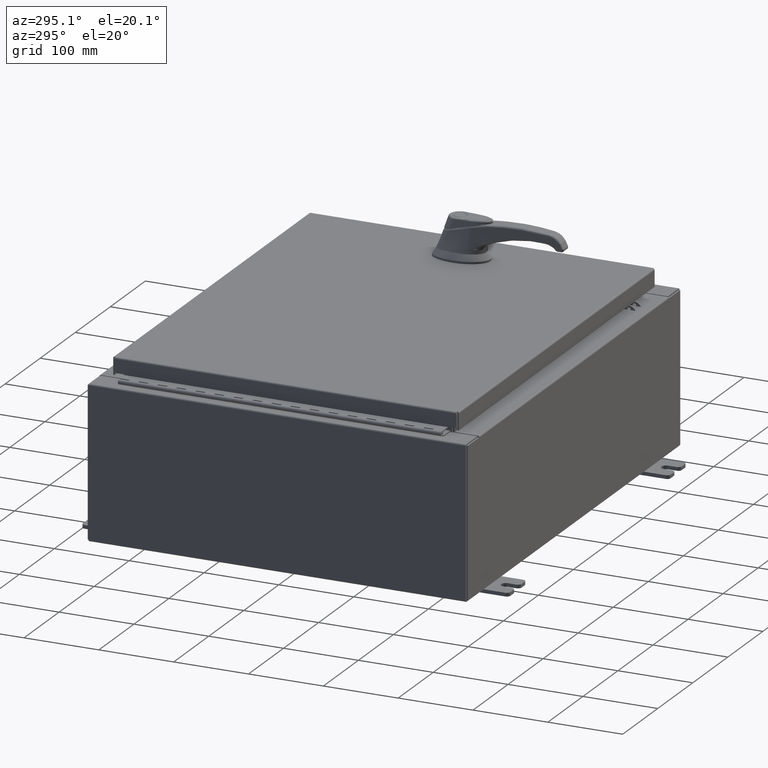
[diagram: clean part render]
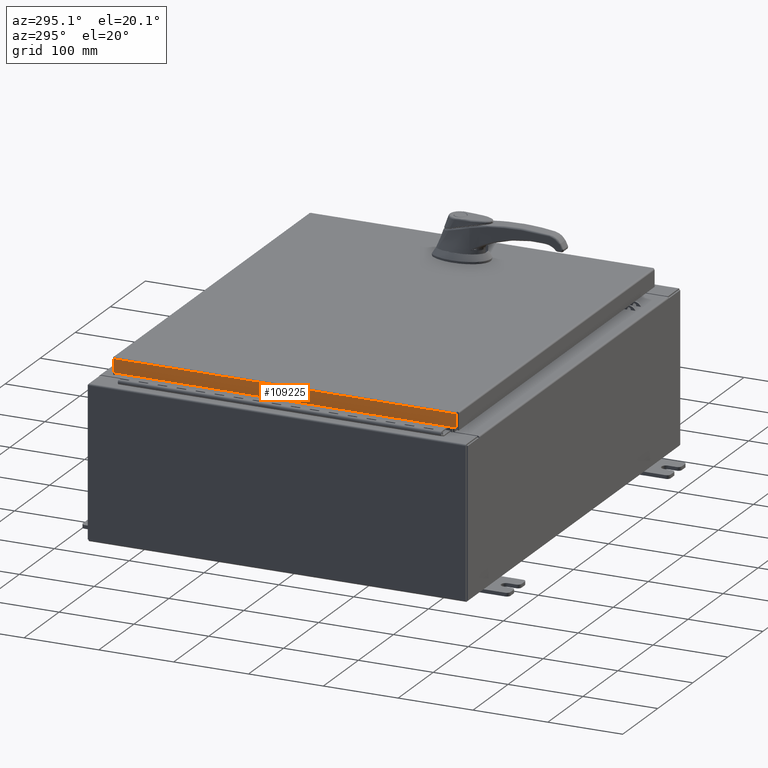
[diagram: same view with one face highlighted and labeled with its STEP entity id]
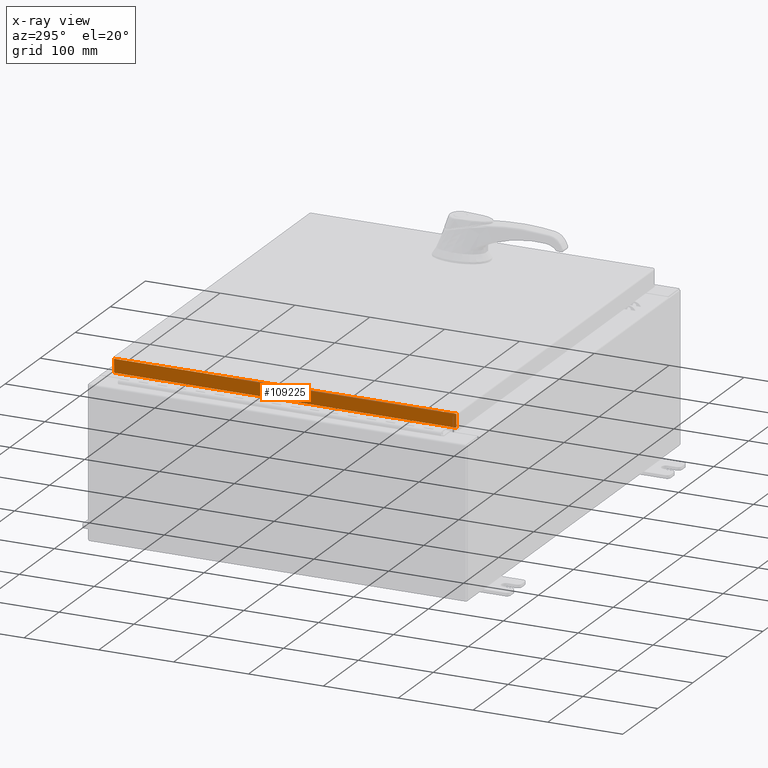
[diagram: x-ray of the same camera — body ghosted, the highlighted face saturated]
A machine part, auxiliary view. The second image highlights one B-rep face of the part: STEP entity #109225.
The next image is the same camera in x-ray: the body ghosted, the highlighted face saturated — about 0% of this face is hidden behind the body in this view.
In plain terms, the highlighted planar face has unit normal (1, 0, -0).
Its self-contained STEP definition (entity closure, byte-faithful):
#2311 = ORIENTED_EDGE ( 'NONE', *, *, #30311, .F. ) ;
#4566 = LINE ( 'NONE', #94943, #47178 ) ;
#7971 = CARTESIAN_POINT ( 'NONE',  ( -11.07799999999999900, -9.005157864376267100, -0.07469999999999976700 ) ) ;
#11057 = VECTOR ( 'NONE', #18598, 39.37007874015748100 ) ;
#13395 = AXIS2_PLACEMENT_3D ( 'NONE', #29704, #89373, #38254 ) ;
#14868 = VERTEX_POINT ( 'NONE', #26810 ) ;
#18598 = DIRECTION ( 'NONE',  ( 3.645815397208356400E-031, -1.000000000000000000, -1.074717912135910100E-045 ) ) ;
#21168 = VERTEX_POINT ( 'NONE', #103948 ) ;
#26810 = CARTESIAN_POINT ( 'NONE',  ( -11.07800000000000300, -9.005157864376261800, -0.7949999999999996000 ) ) ;
#27901 = VECTOR ( 'NONE', #70931, 39.37007874015748100 ) ;
#28598 = LINE ( 'NONE', #7971, #53943 ) ;
#29704 = CARTESIAN_POINT ( 'NONE',  ( -11.07799999999999900, -4.038834297027417500E-030, 3.387282206785410600E-014 ) ) ;
#30311 = EDGE_CURVE ( 'NONE', #64780, #21168, #59066, .T. ) ;
#31517 = FACE_OUTER_BOUND ( 'NONE', #105350, .T. ) ;
#32432 = CARTESIAN_POINT ( 'NONE',  ( -11.07799999999999900, -9.093999999999999400, -0.08770000000000004200 ) ) ;
#33743 = ORIENTED_EDGE ( 'NONE', *, *, #34404, .F. ) ;
#34404 = EDGE_CURVE ( 'NONE', #14868, #48802, #50553, .T. ) ;
#38254 = DIRECTION ( 'NONE',  ( -3.034122441942816500E-015, 0.0000000000000000000, -1.000000000000000000 ) ) ;
#47178 = VECTOR ( 'NONE', #103612, 39.37007874015748100 ) ;
#48802 = VERTEX_POINT ( 'NONE', #52478 ) ;
#50553 = LINE ( 'NONE', #105015, #27901 ) ;
#51105 = CARTESIAN_POINT ( 'NONE',  ( -11.07799999999999900, 9.005157864376270600, -0.08770000000000004200 ) ) ;
#52478 = CARTESIAN_POINT ( 'NONE',  ( -11.07800000000000300, 9.005157864376274200, -0.7949999999999974900 ) ) ;
#53943 = VECTOR ( 'NONE', #101640, 39.37007874015748100 ) ;
#59066 = LINE ( 'NONE', #32432, #11057 ) ;
#64780 = VERTEX_POINT ( 'NONE', #51105 ) ;
#64921 = ORIENTED_EDGE ( 'NONE', *, *, #93042, .F. ) ;
#70931 = DIRECTION ( 'NONE',  ( 4.379057701015054300E-047, 1.000000000000000000, 1.201604571657912400E-016 ) ) ;
#71865 = PLANE ( 'NONE',  #13395 ) ;
#89373 = DIRECTION ( 'NONE',  ( 1.000000000000000000, 3.645815397208356400E-031, -3.034122441942816500E-015 ) ) ;
#93042 = EDGE_CURVE ( 'NONE', #21168, #14868, #28598, .T. ) ;
#94907 = EDGE_CURVE ( 'NONE', #64780, #48802, #4566, .T. ) ;
#94943 = CARTESIAN_POINT ( 'NONE',  ( -11.07799999999999900, 9.005157864376268900, 9.675550334146656300E-014 ) ) ;
#101640 = DIRECTION ( 'NONE',  ( -3.034122441942816500E-015, 6.982962677686267500E-015, -1.000000000000000000 ) ) ;
#103612 = DIRECTION ( 'NONE',  ( -3.034122441942816500E-015, 6.982962677686267500E-015, -1.000000000000000000 ) ) ;
#103948 = CARTESIAN_POINT ( 'NONE',  ( -11.07799999999999900, -9.005157864376268900, -0.08770000000000007000 ) ) ;
#105015 = CARTESIAN_POINT ( 'NONE',  ( -11.07800000000000300, -9.093999999999999400, -0.7949999999999997100 ) ) ;
#105350 = EDGE_LOOP ( 'NONE', ( #2311, #106231, #33743, #64921 ) ) ;
#106231 = ORIENTED_EDGE ( 'NONE', *, *, #94907, .T. ) ;
#109225 = ADVANCED_FACE ( 'NONE', ( #31517 ), #71865, .F. ) ;